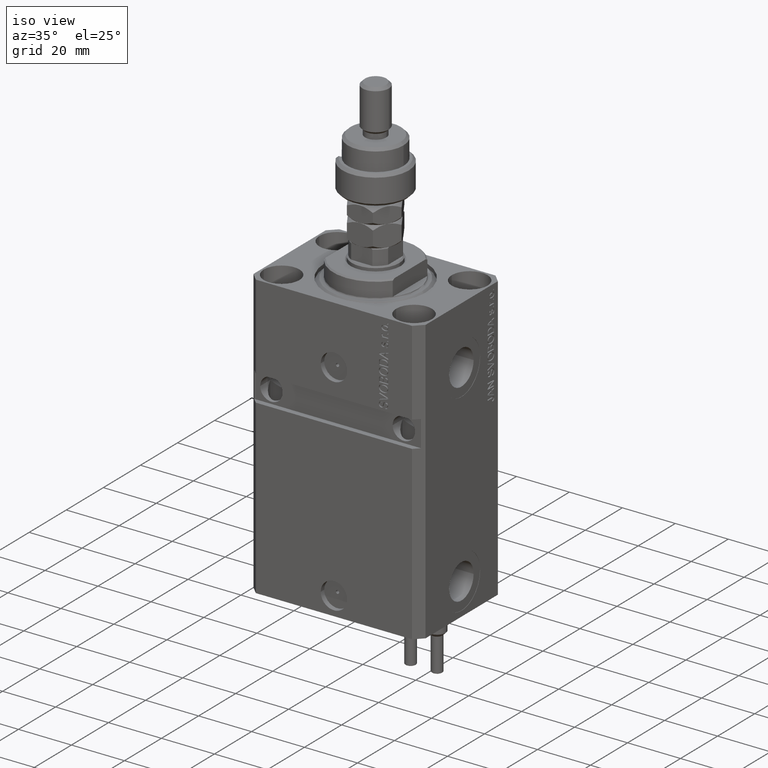
[diagram: clean part render]
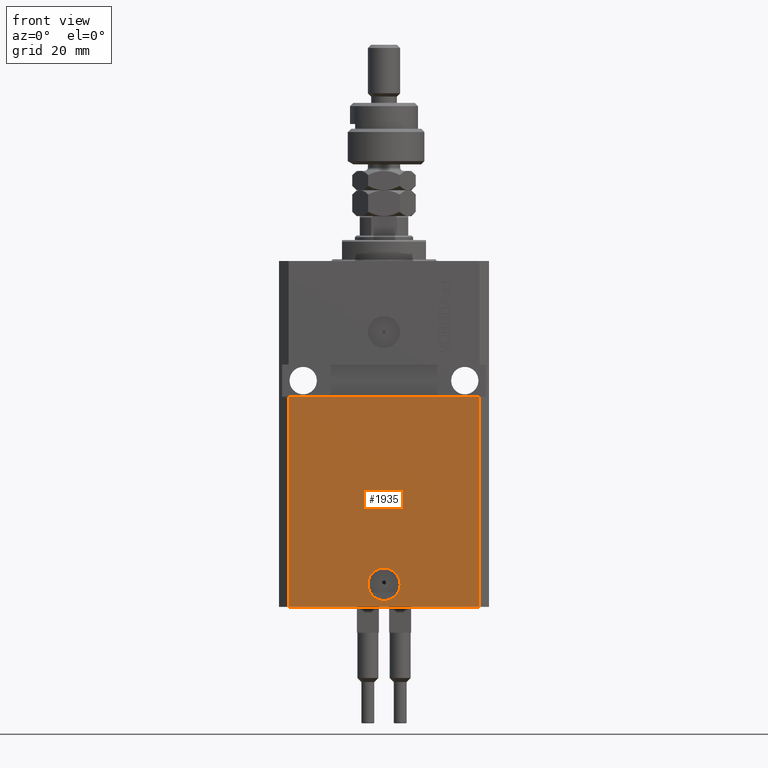
[diagram: tour spotlight — one face highlighted and labeled with its STEP entity id]
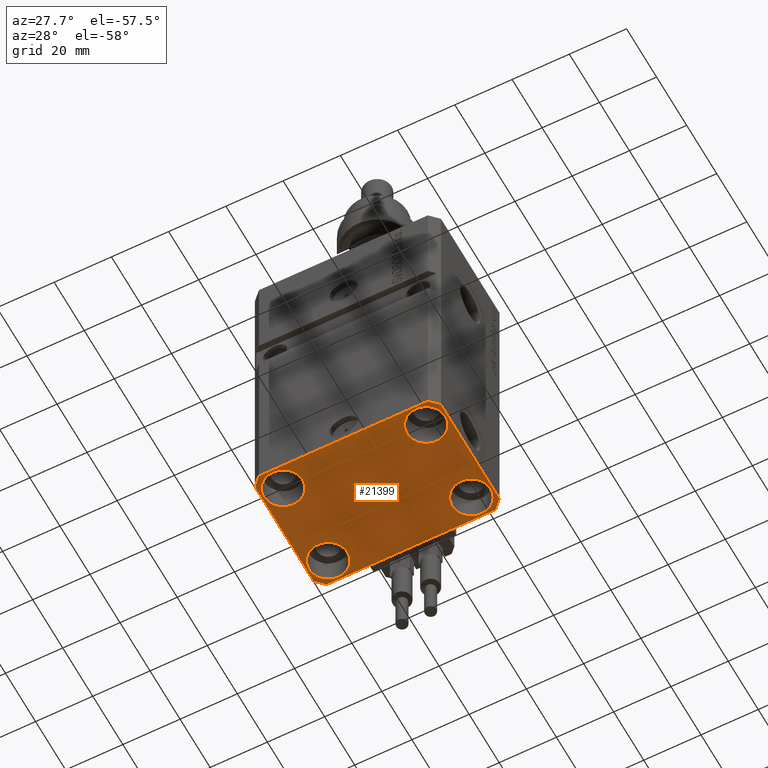
[diagram: tour spotlight — one face highlighted and labeled with its STEP entity id]
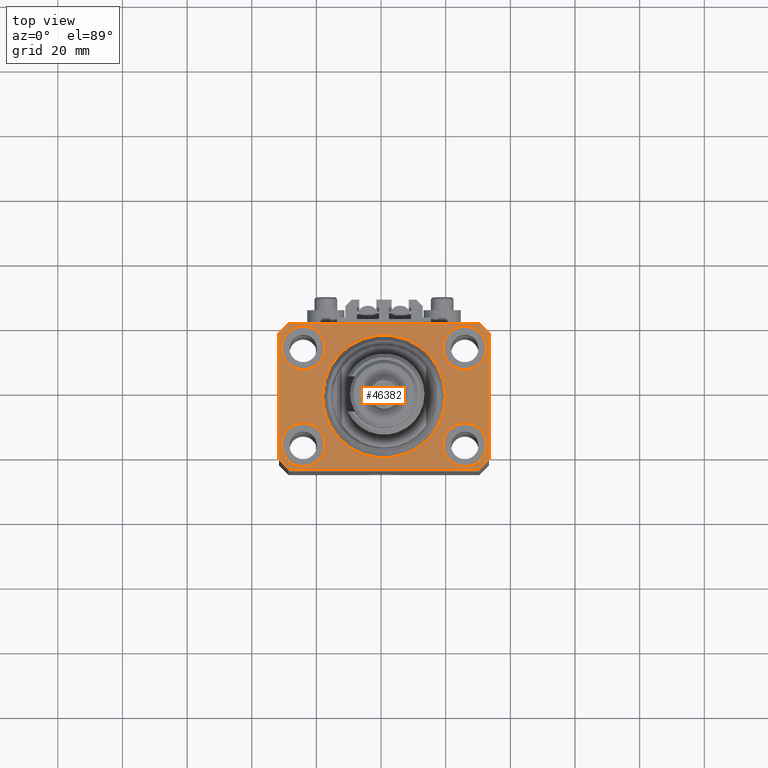
[diagram: tour spotlight — one face highlighted and labeled with its STEP entity id]
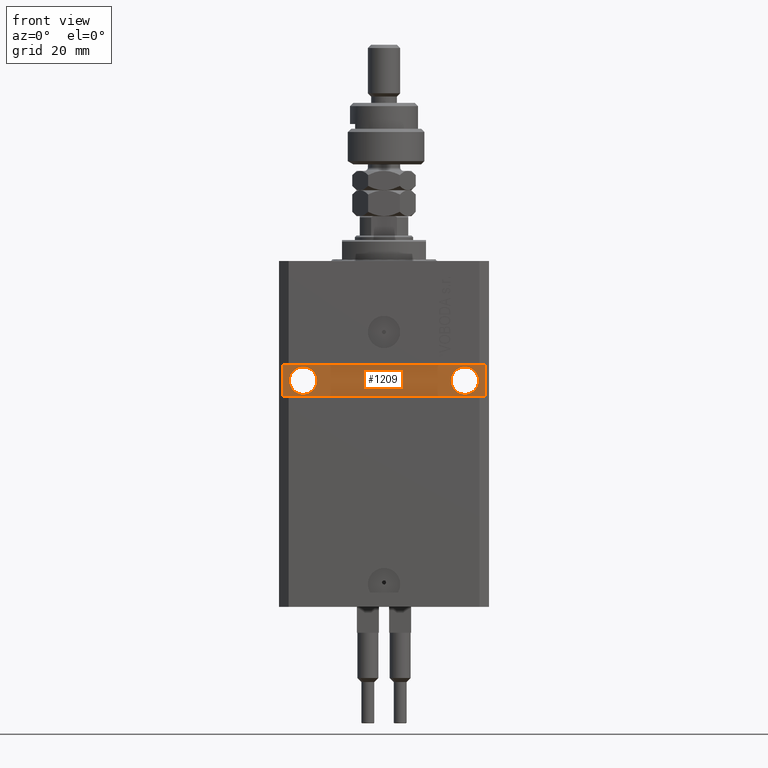
[diagram: tour spotlight — one face highlighted and labeled with its STEP entity id]
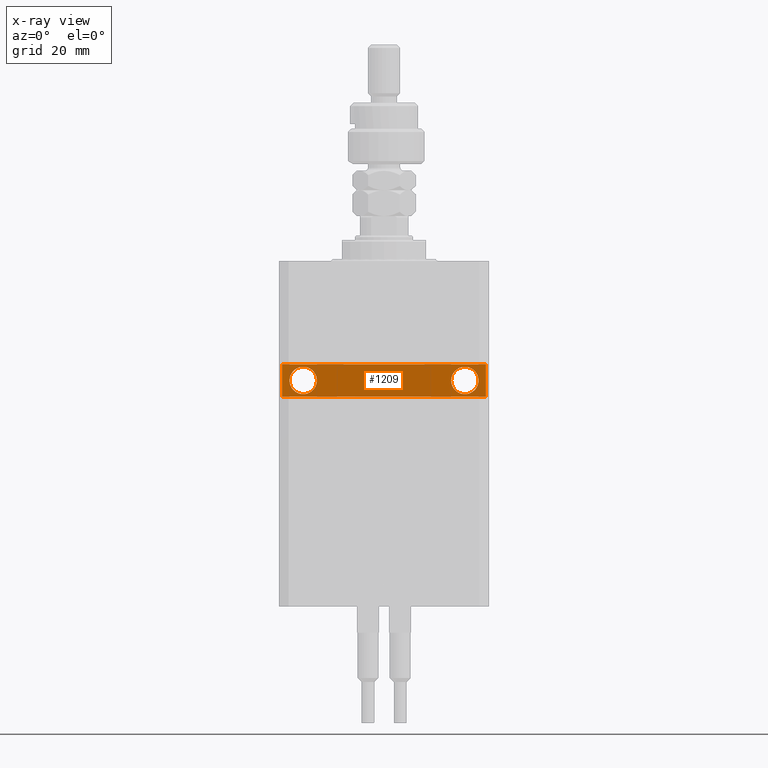
[diagram: x-ray of the same camera — body ghosted, this tour face saturated]
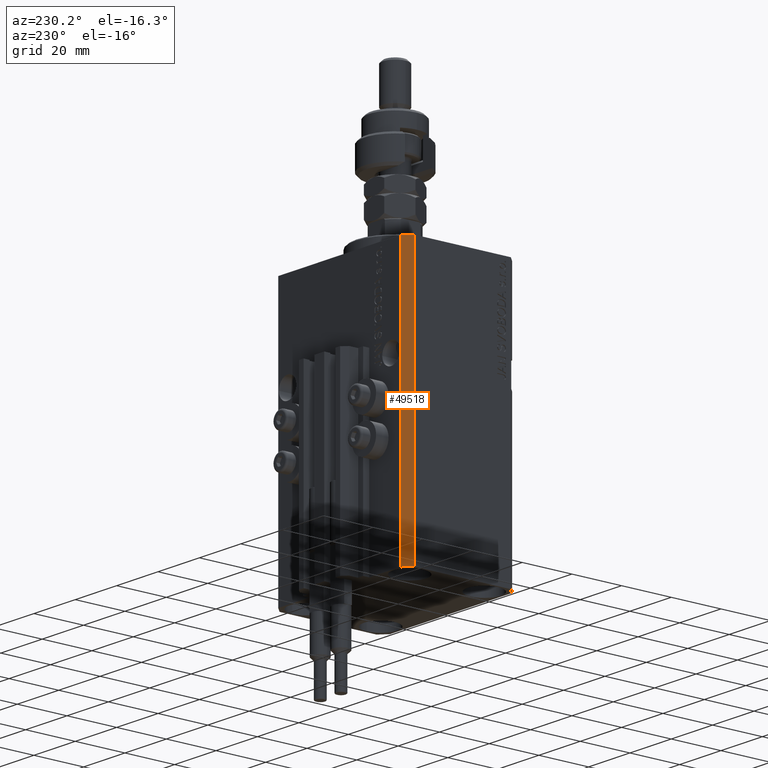
[diagram: tour spotlight — one face highlighted and labeled with its STEP entity id]
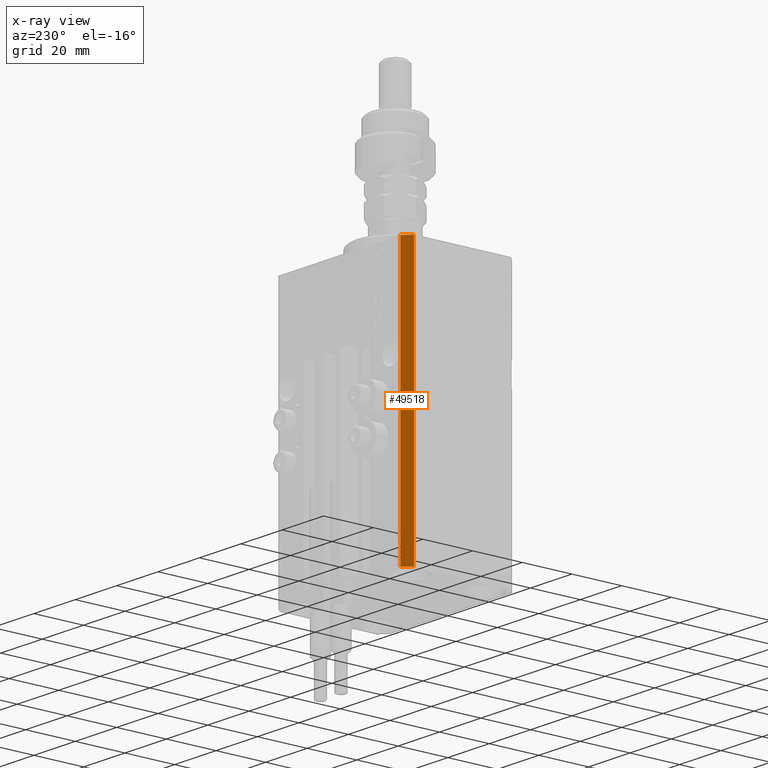
[diagram: x-ray of the same camera — body ghosted, this tour face saturated]
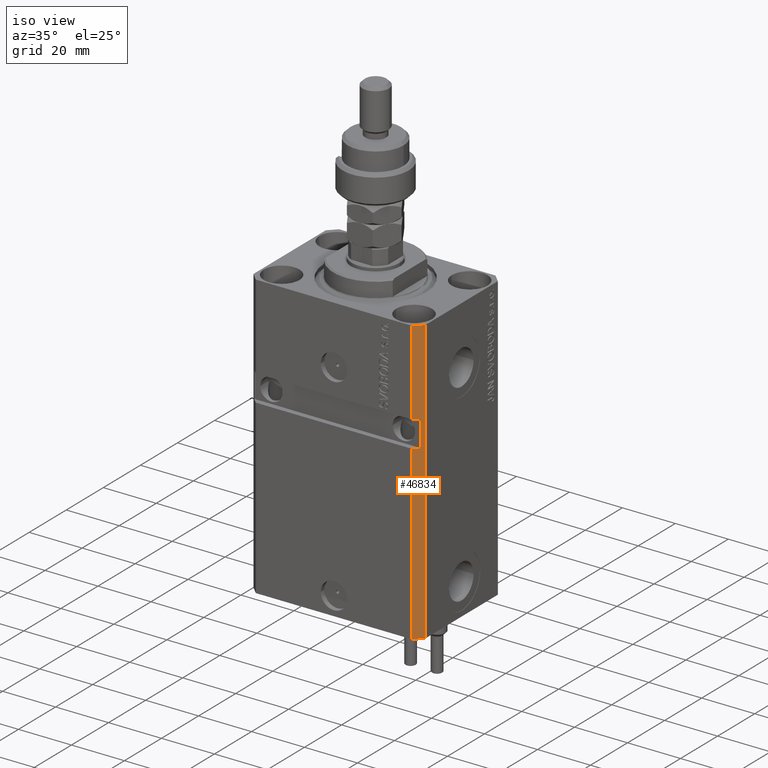
[diagram: tour spotlight — one face highlighted and labeled with its STEP entity id]
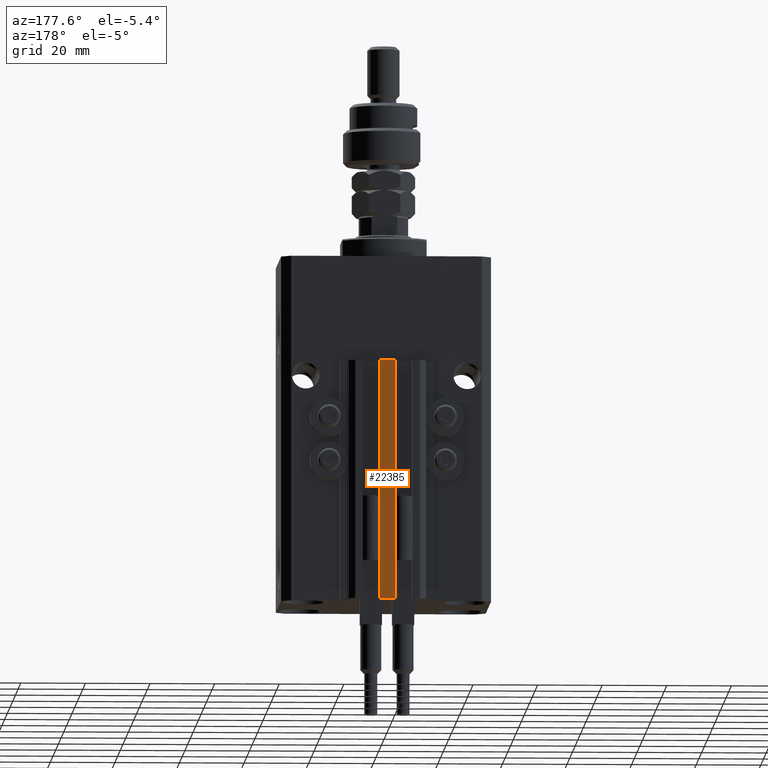
[diagram: tour spotlight — one face highlighted and labeled with its STEP entity id]
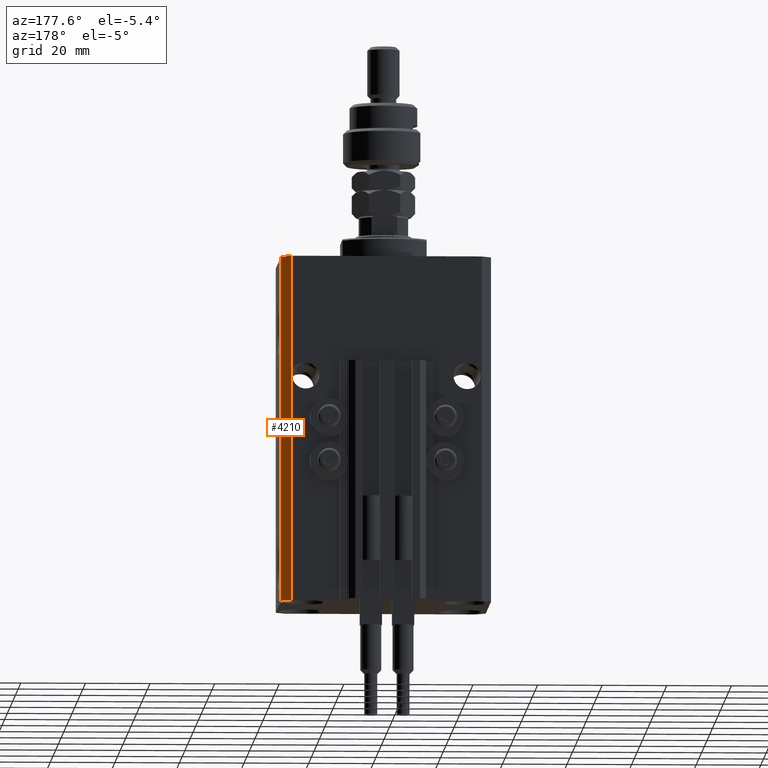
[diagram: tour spotlight — one face highlighted and labeled with its STEP entity id]
A machine part: a face-by-face anatomy tour. The part has 1204 B-rep faces; the first image is the clean iso view, then the 8 largest visible faces are spotlighted one at a time (largest first), each with its STEP entity span.

Face 1 — front view, entity #1935. In plain terms, the highlighted planar face has unit normal (0, -1, 0).
Definition (entity closure, byte-faithful):
#17 = DIRECTION ( 'NONE',  ( 1.176083712526788232E-16, -1.000000000000000000, 0.000000000000000000 ) ) ;
#1563 = CARTESIAN_POINT ( 'NONE',  ( -29.49999999999650413, -22.49999999999949907, -107.0000000000000000 ) ) ;
#1935 = ADVANCED_FACE ( 'NONE', ( #7461, #7707 ), #34460, .T. ) ;
#1986 = VERTEX_POINT ( 'NONE', #15165 ) ;
#2102 = ORIENTED_EDGE ( 'NONE', *, *, #38877, .F. ) ;
#2364 = EDGE_LOOP ( 'NONE', ( #24131, #39999, #27823, #43427 ) ) ;
#2751 = CARTESIAN_POINT ( 'NONE',  ( 29.49999999999650058, -22.49999999999949196, -41.99999999999998579 ) ) ;
#3163 = CARTESIAN_POINT ( 'NONE',  ( 5.000000000000008882, -22.49999999999949551, -99.99999999999998579 ) ) ;
#5594 = EDGE_LOOP ( 'NONE', ( #30396, #2102 ) ) ;
#6116 = LINE ( 'NONE', #38005, #10053 ) ;
#6859 = DIRECTION ( 'NONE',  ( 1.176083712526788232E-16, -1.000000000000000000, 0.000000000000000000 ) ) ;
#6914 = CARTESIAN_POINT ( 'NONE',  ( -5.000000000000003553, -22.49999999999949551, -99.99999999999998579 ) ) ;
#7115 = CARTESIAN_POINT ( 'NONE',  ( -29.49999999999650413, -22.49999999999949907, -107.0000000000000000 ) ) ;
#7461 = FACE_BOUND ( 'NONE', #5594, .T. ) ;
#7707 = FACE_OUTER_BOUND ( 'NONE', #2364, .T. ) ;
#8218 = CARTESIAN_POINT ( 'NONE',  ( -29.49999999999650413, -22.49999999999949907, -107.0000000000000000 ) ) ;
#9860 = DIRECTION ( 'NONE',  ( 1.176083712526788232E-16, -1.000000000000000000, 0.000000000000000000 ) ) ;
#10053 = VECTOR ( 'NONE', #48801, 1000.000000000000000 ) ;
#10473 = CARTESIAN_POINT ( 'NONE',  ( 2.646188353185214061E-15, -22.49999999999949551, -99.99999999999998579 ) ) ;
#11491 = AXIS2_PLACEMENT_3D ( 'NONE', #10473, #6859, #26410 ) ;
#13435 = DIRECTION ( 'NONE',  ( 0.000000000000000000, 0.000000000000000000, 1.000000000000000000 ) ) ;
#15165 = CARTESIAN_POINT ( 'NONE',  ( -29.49999999999650413, -22.49999999999949907, -41.99999999999999289 ) ) ;
#16830 = AXIS2_PLACEMENT_3D ( 'NONE', #37626, #9860, #41988 ) ;
#17251 = DIRECTION ( 'NONE',  ( 0.000000000000000000, 0.000000000000000000, 1.000000000000000000 ) ) ;
#18552 = VERTEX_POINT ( 'NONE', #2751 ) ;
#24131 = ORIENTED_EDGE ( 'NONE', *, *, #34612, .F. ) ;
#26410 = DIRECTION ( 'NONE',  ( 1.000000000000000000, 0.000000000000000000, 0.000000000000000000 ) ) ;
#27823 = ORIENTED_EDGE ( 'NONE', *, *, #31045, .T. ) ;
#29371 = LINE ( 'NONE', #44780, #30466 ) ;
#30161 = AXIS2_PLACEMENT_3D ( 'NONE', #8218, #17, #50379 ) ;
#30396 = ORIENTED_EDGE ( 'NONE', *, *, #49337, .F. ) ;
#30466 = VECTOR ( 'NONE', #13435, 1000.000000000000000 ) ;
#31045 = EDGE_CURVE ( 'NONE', #45052, #38097, #50300, .T. ) ;
#32145 = EDGE_CURVE ( 'NONE', #38097, #18552, #29371, .T. ) ;
#33686 = VECTOR ( 'NONE', #38757, 1000.000000000000000 ) ;
#34460 = PLANE ( 'NONE',  #30161 ) ;
#34612 = EDGE_CURVE ( 'NONE', #1986, #18552, #6116, .T. ) ;
#36790 = LINE ( 'NONE', #1563, #45929 ) ;
#37626 = CARTESIAN_POINT ( 'NONE',  ( 2.646188353185214061E-15, -22.49999999999949551, -99.99999999999998579 ) ) ;
#38005 = CARTESIAN_POINT ( 'NONE',  ( -32.49999999999650413, -22.49999999999949907, -41.99999999999999289 ) ) ;
#38097 = VERTEX_POINT ( 'NONE', #45565 ) ;
#38195 = CIRCLE ( 'NONE', #16830, 5.000000000000006217 ) ;
#38479 = CARTESIAN_POINT ( 'NONE',  ( -29.49999999999650413, -22.49999999999949907, -107.0000000000000000 ) ) ;
#38757 = DIRECTION ( 'NONE',  ( 1.000000000000000000, 1.176083712526788232E-16, 0.000000000000000000 ) ) ;
#38877 = EDGE_CURVE ( 'NONE', #48839, #40709, #38195, .T. ) ;
#39999 = ORIENTED_EDGE ( 'NONE', *, *, #48065, .F. ) ;
#40709 = VERTEX_POINT ( 'NONE', #3163 ) ;
#41988 = DIRECTION ( 'NONE',  ( 1.000000000000000000, 0.000000000000000000, 0.000000000000000000 ) ) ;
#42674 = CIRCLE ( 'NONE', #11491, 5.000000000000006217 ) ;
#43427 = ORIENTED_EDGE ( 'NONE', *, *, #32145, .T. ) ;
#44780 = CARTESIAN_POINT ( 'NONE',  ( 29.49999999999650413, -22.49999999999949196, -107.0000000000000000 ) ) ;
#45052 = VERTEX_POINT ( 'NONE', #38479 ) ;
#45565 = CARTESIAN_POINT ( 'NONE',  ( 29.49999999999650413, -22.49999999999949196, -107.0000000000000000 ) ) ;
#45929 = VECTOR ( 'NONE', #17251, 1000.000000000000000 ) ;
#48065 = EDGE_CURVE ( 'NONE', #45052, #1986, #36790, .T. ) ;
#48801 = DIRECTION ( 'NONE',  ( 1.000000000000000000, 1.067522139062765303E-16, 1.067522139062765303E-16 ) ) ;
#48839 = VERTEX_POINT ( 'NONE', #6914 ) ;
#49337 = EDGE_CURVE ( 'NONE', #40709, #48839, #42674, .T. ) ;
#50300 = LINE ( 'NONE', #7115, #33686 ) ;
#50379 = DIRECTION ( 'NONE',  ( 1.000000000000000000, 1.176083712526788232E-16, 0.000000000000000000 ) ) ;

Face 2 — auxiliary view, entity #21399. In plain terms, the highlighted planar face has unit normal (0, 0, 1).
Definition (entity closure, byte-faithful):
#332 = CARTESIAN_POINT ( 'NONE',  ( -32.49999999999650413, 19.49999999999949907, -107.0000000000000000 ) ) ;
#1313 = DIRECTION ( 'NONE',  ( 1.000000000000000000, 0.000000000000000000, 0.000000000000000000 ) ) ;
#1754 = DIRECTION ( 'NONE',  ( 1.000000000000000000, 0.000000000000000000, 0.000000000000000000 ) ) ;
#2265 = EDGE_CURVE ( 'NONE', #19843, #11121, #11275, .T. ) ;
#2506 = EDGE_LOOP ( 'NONE', ( #41555, #24169 ) ) ;
#2723 = CARTESIAN_POINT ( 'NONE',  ( -31.75000000002253842, 15.00000000000000000, -107.0000000000000000 ) ) ;
#3032 = CIRCLE ( 'NONE', #6336, 6.749999999958452790 ) ;
#3034 = AXIS2_PLACEMENT_3D ( 'NONE', #40520, #19991, #4294 ) ;
#3424 = FACE_BOUND ( 'NONE', #2506, .T. ) ;
#4294 = DIRECTION ( 'NONE',  ( 1.000000000000000000, 0.000000000000000000, 0.000000000000000000 ) ) ;
#4857 = VERTEX_POINT ( 'NONE', #18207 ) ;
#5118 = CARTESIAN_POINT ( 'NONE',  ( 31.74999999997746869, -15.00000000000000000, -107.0000000000000000 ) ) ;
#5129 = EDGE_CURVE ( 'NONE', #11121, #19843, #3032, .T. ) ;
#5417 = EDGE_CURVE ( 'NONE', #43981, #45052, #10630, .T. ) ;
#5996 = LINE ( 'NONE', #33998, #21520 ) ;
#6252 = LINE ( 'NONE', #34261, #28124 ) ;
#6319 = CARTESIAN_POINT ( 'NONE',  ( -29.49999999999650413, 22.49999999999949907, -107.0000000000000000 ) ) ;
#6336 = AXIS2_PLACEMENT_3D ( 'NONE', #15046, #14528, #6820 ) ;
#6775 = FACE_BOUND ( 'NONE', #30519, .T. ) ;
#6820 = DIRECTION ( 'NONE',  ( 1.000000000000000000, 0.000000000000000000, 0.000000000000000000 ) ) ;
#7115 = CARTESIAN_POINT ( 'NONE',  ( -29.49999999999650413, -22.49999999999949907, -107.0000000000000000 ) ) ;
#7116 = VERTEX_POINT ( 'NONE', #5118 ) ;
#7648 = EDGE_LOOP ( 'NONE', ( #12522, #20064, #12612, #45556, #34925, #24132, #23759, #8014 ) ) ;
#7796 = CARTESIAN_POINT ( 'NONE',  ( -25.00000000000000355, -15.00000000000000000, -107.0000000000000000 ) ) ;
#8014 = ORIENTED_EDGE ( 'NONE', *, *, #44076, .F. ) ;
#8015 = LINE ( 'NONE', #20848, #13693 ) ;
#8767 = CARTESIAN_POINT ( 'NONE',  ( -25.00000000000000355, 15.00000000000000000, -107.0000000000000000 ) ) ;
#8890 = VERTEX_POINT ( 'NONE', #26582 ) ;
#9053 = CARTESIAN_POINT ( 'NONE',  ( 32.49999999999702993, 19.49999999999945999, -107.0000000000000000 ) ) ;
#9566 = CIRCLE ( 'NONE', #21960, 6.750000000022533087 ) ;
#9592 = DIRECTION ( 'NONE',  ( -0.000000000000000000, -0.000000000000000000, 1.000000000000000000 ) ) ;
#9719 = CARTESIAN_POINT ( 'NONE',  ( 29.49999999999707967, 22.49999999999951328, -107.0000000000000000 ) ) ;
#10630 = LINE ( 'NONE', #10887, #44894 ) ;
#10754 = CARTESIAN_POINT ( 'NONE',  ( 25.00000000000000355, -15.00000000000000000, -107.0000000000000000 ) ) ;
#10886 = DIRECTION ( 'NONE',  ( 0.000000000000000000, -1.000000000000000000, 0.000000000000000000 ) ) ;
#10887 = CARTESIAN_POINT ( 'NONE',  ( -32.49999999999650413, -19.49999999999949907, -107.0000000000000000 ) ) ;
#11121 = VERTEX_POINT ( 'NONE', #48478 ) ;
#11150 = CARTESIAN_POINT ( 'NONE',  ( 0.000000000000000000, 0.000000000000000000, -107.0000000000000000 ) ) ;
#11275 = CIRCLE ( 'NONE', #3034, 6.749999999958452790 ) ;
#11679 = DIRECTION ( 'NONE',  ( 1.000000000000000000, 0.000000000000000000, 0.000000000000000000 ) ) ;
#11922 = DIRECTION ( 'NONE',  ( -0.000000000000000000, -0.000000000000000000, 1.000000000000000000 ) ) ;
#12347 = CARTESIAN_POINT ( 'NONE',  ( -31.75000000004154899, -15.00000000000000000, -107.0000000000000000 ) ) ;
#12522 = ORIENTED_EDGE ( 'NONE', *, *, #16234, .F. ) ;
#12612 = ORIENTED_EDGE ( 'NONE', *, *, #19578, .F. ) ;
#13693 = VECTOR ( 'NONE', #36529, 1000.000000000000000 ) ;
#13816 = CARTESIAN_POINT ( 'NONE',  ( 32.49999999999651124, -19.49999999999949196, -107.0000000000000000 ) ) ;
#14528 = DIRECTION ( 'NONE',  ( -0.000000000000000000, -0.000000000000000000, 1.000000000000000000 ) ) ;
#14751 = DIRECTION ( 'NONE',  ( 1.000000000000000000, 0.000000000000000000, -0.000000000000000000 ) ) ;
#15046 = CARTESIAN_POINT ( 'NONE',  ( 24.99999999999999645, 15.00000000000000888, -107.0000000000000000 ) ) ;
#15220 = VERTEX_POINT ( 'NONE', #39650 ) ;
#15379 = CARTESIAN_POINT ( 'NONE',  ( -25.00000000000000355, 15.00000000000000000, -107.0000000000000000 ) ) ;
#15641 = DIRECTION ( 'NONE',  ( 1.000000000000000000, 0.000000000000000000, 0.000000000000000000 ) ) ;
#16185 = CARTESIAN_POINT ( 'NONE',  ( 18.25000000004154543, 15.00000000000000888, -107.0000000000000000 ) ) ;
#16234 = EDGE_CURVE ( 'NONE', #38732, #26646, #35102, .T. ) ;
#16253 = DIRECTION ( 'NONE',  ( -0.000000000000000000, -0.000000000000000000, 1.000000000000000000 ) ) ;
#16669 = DIRECTION ( 'NONE',  ( -0.000000000000000000, -0.000000000000000000, 1.000000000000000000 ) ) ;
#17318 = CARTESIAN_POINT ( 'NONE',  ( 25.00000000000000355, -15.00000000000000000, -107.0000000000000000 ) ) ;
#18207 = CARTESIAN_POINT ( 'NONE',  ( 18.25000000002253842, -15.00000000000000000, -107.0000000000000000 ) ) ;
#19578 = EDGE_CURVE ( 'NONE', #29992, #44422, #8015, .T. ) ;
#19643 = EDGE_LOOP ( 'NONE', ( #37612, #40649 ) ) ;
#19787 = VERTEX_POINT ( 'NONE', #12347 ) ;
#19843 = VERTEX_POINT ( 'NONE', #16185 ) ;
#19904 = CIRCLE ( 'NONE', #32230, 6.749999999977465137 ) ;
#19991 = DIRECTION ( 'NONE',  ( -0.000000000000000000, -0.000000000000000000, 1.000000000000000000 ) ) ;
#20064 = ORIENTED_EDGE ( 'NONE', *, *, #47599, .F. ) ;
#20267 = EDGE_CURVE ( 'NONE', #15220, #40057, #9566, .T. ) ;
#20762 = ORIENTED_EDGE ( 'NONE', *, *, #44304, .T. ) ;
#20808 = VERTEX_POINT ( 'NONE', #332 ) ;
#20848 = CARTESIAN_POINT ( 'NONE',  ( 32.49999999999651124, -19.49999999999949196, -107.0000000000000000 ) ) ;
#21399 = ADVANCED_FACE ( 'NONE', ( #42505, #3424, #6775, #41741, #26331 ), #22466, .F. ) ;
#21520 = VECTOR ( 'NONE', #26308, 1000.000000000000000 ) ;
#21960 = AXIS2_PLACEMENT_3D ( 'NONE', #8767, #16253, #1313 ) ;
#22466 = PLANE ( 'NONE',  #47431 ) ;
#23606 = DIRECTION ( 'NONE',  ( -0.000000000000000000, -0.000000000000000000, 1.000000000000000000 ) ) ;
#23759 = ORIENTED_EDGE ( 'NONE', *, *, #34876, .F. ) ;
#24132 = ORIENTED_EDGE ( 'NONE', *, *, #5417, .F. ) ;
#24169 = ORIENTED_EDGE ( 'NONE', *, *, #34639, .T. ) ;
#25549 = ORIENTED_EDGE ( 'NONE', *, *, #25665, .T. ) ;
#25665 = EDGE_CURVE ( 'NONE', #19787, #8890, #27797, .T. ) ;
#25903 = ORIENTED_EDGE ( 'NONE', *, *, #2265, .T. ) ;
#26308 = DIRECTION ( 'NONE',  ( 0.7071067811865483499, 0.7071067811865466846, 0.000000000000000000 ) ) ;
#26316 = DIRECTION ( 'NONE',  ( 0.7071067811865474617, -0.7071067811865474617, 0.000000000000000000 ) ) ;
#26331 = FACE_OUTER_BOUND ( 'NONE', #7648, .T. ) ;
#26582 = CARTESIAN_POINT ( 'NONE',  ( -18.24999999995845812, -15.00000000000000000, -107.0000000000000000 ) ) ;
#26646 = VERTEX_POINT ( 'NONE', #6319 ) ;
#27797 = CIRCLE ( 'NONE', #41834, 6.750000000041541881 ) ;
#27901 = CARTESIAN_POINT ( 'NONE',  ( 32.49999999999702993, 19.49999999999945999, -107.0000000000000000 ) ) ;
#28124 = VECTOR ( 'NONE', #10886, 1000.000000000000000 ) ;
#29992 = VERTEX_POINT ( 'NONE', #13816 ) ;
#30519 = EDGE_LOOP ( 'NONE', ( #25903, #38117 ) ) ;
#30993 = LINE ( 'NONE', #27901, #36829 ) ;
#31045 = EDGE_CURVE ( 'NONE', #45052, #38097, #50300, .T. ) ;
#31375 = CARTESIAN_POINT ( 'NONE',  ( -25.00000000000000355, -15.00000000000000000, -107.0000000000000000 ) ) ;
#32230 = AXIS2_PLACEMENT_3D ( 'NONE', #17318, #9592, #40220 ) ;
#32598 = AXIS2_PLACEMENT_3D ( 'NONE', #7796, #11922, #11679 ) ;
#32600 = EDGE_LOOP ( 'NONE', ( #25549, #20762 ) ) ;
#32637 = VECTOR ( 'NONE', #34924, 1000.000000000000114 ) ;
#33686 = VECTOR ( 'NONE', #38757, 1000.000000000000000 ) ;
#33760 = EDGE_CURVE ( 'NONE', #38097, #29992, #5996, .T. ) ;
#33998 = CARTESIAN_POINT ( 'NONE',  ( 29.49999999999650413, -22.49999999999949196, -107.0000000000000000 ) ) ;
#34261 = CARTESIAN_POINT ( 'NONE',  ( -32.49999999999650413, 19.49999999999949907, -107.0000000000000000 ) ) ;
#34420 = CARTESIAN_POINT ( 'NONE',  ( -29.49999999999650413, 22.49999999999949907, -107.0000000000000000 ) ) ;
#34639 = EDGE_CURVE ( 'NONE', #7116, #4857, #40408, .T. ) ;
#34798 = EDGE_CURVE ( 'NONE', #4857, #7116, #19904, .T. ) ;
#34876 = EDGE_CURVE ( 'NONE', #20808, #43981, #6252, .T. ) ;
#34924 = DIRECTION ( 'NONE',  ( -0.7071067811865474617, -0.7071067811865474617, 0.000000000000000000 ) ) ;
#34925 = ORIENTED_EDGE ( 'NONE', *, *, #31045, .F. ) ;
#35102 = LINE ( 'NONE', #39722, #48037 ) ;
#36317 = EDGE_CURVE ( 'NONE', #40057, #15220, #49461, .T. ) ;
#36354 = DIRECTION ( 'NONE',  ( -0.7071067811865352493, 0.7071067811865597852, 0.000000000000000000 ) ) ;
#36529 = DIRECTION ( 'NONE',  ( 1.334402673828349134E-14, 1.000000000000000000, 0.000000000000000000 ) ) ;
#36829 = VECTOR ( 'NONE', #36354, 1000.000000000000000 ) ;
#37612 = ORIENTED_EDGE ( 'NONE', *, *, #36317, .T. ) ;
#37639 = DIRECTION ( 'NONE',  ( 0.000000000000000000, 0.000000000000000000, 1.000000000000000000 ) ) ;
#38097 = VERTEX_POINT ( 'NONE', #45565 ) ;
#38117 = ORIENTED_EDGE ( 'NONE', *, *, #5129, .T. ) ;
#38479 = CARTESIAN_POINT ( 'NONE',  ( -29.49999999999650413, -22.49999999999949907, -107.0000000000000000 ) ) ;
#38732 = VERTEX_POINT ( 'NONE', #9719 ) ;
#38757 = DIRECTION ( 'NONE',  ( 1.000000000000000000, 1.176083712526788232E-16, 0.000000000000000000 ) ) ;
#39650 = CARTESIAN_POINT ( 'NONE',  ( -18.24999999997747224, 15.00000000000000000, -107.0000000000000000 ) ) ;
#39722 = CARTESIAN_POINT ( 'NONE',  ( 29.49999999999707967, 22.49999999999951328, -107.0000000000000000 ) ) ;
#40057 = VERTEX_POINT ( 'NONE', #2723 ) ;
#40075 = DIRECTION ( 'NONE',  ( 1.000000000000000000, 0.000000000000000000, 0.000000000000000000 ) ) ;
#40220 = DIRECTION ( 'NONE',  ( 1.000000000000000000, 0.000000000000000000, 0.000000000000000000 ) ) ;
#40408 = CIRCLE ( 'NONE', #48626, 6.749999999977465137 ) ;
#40520 = CARTESIAN_POINT ( 'NONE',  ( 24.99999999999999645, 15.00000000000000888, -107.0000000000000000 ) ) ;
#40649 = ORIENTED_EDGE ( 'NONE', *, *, #20267, .T. ) ;
#41555 = ORIENTED_EDGE ( 'NONE', *, *, #34798, .T. ) ;
#41613 = CARTESIAN_POINT ( 'NONE',  ( -32.49999999999650413, -19.49999999999949907, -107.0000000000000000 ) ) ;
#41741 = FACE_BOUND ( 'NONE', #19643, .T. ) ;
#41834 = AXIS2_PLACEMENT_3D ( 'NONE', #31375, #16669, #40075 ) ;
#42505 = FACE_BOUND ( 'NONE', #32600, .T. ) ;
#43981 = VERTEX_POINT ( 'NONE', #41613 ) ;
#44076 = EDGE_CURVE ( 'NONE', #26646, #20808, #45994, .T. ) ;
#44304 = EDGE_CURVE ( 'NONE', #8890, #19787, #44920, .T. ) ;
#44422 = VERTEX_POINT ( 'NONE', #9053 ) ;
#44535 = AXIS2_PLACEMENT_3D ( 'NONE', #15379, #23606, #15641 ) ;
#44894 = VECTOR ( 'NONE', #26316, 1000.000000000000114 ) ;
#44920 = CIRCLE ( 'NONE', #32598, 6.750000000041541881 ) ;
#44932 = DIRECTION ( 'NONE',  ( -0.000000000000000000, -0.000000000000000000, 1.000000000000000000 ) ) ;
#45052 = VERTEX_POINT ( 'NONE', #38479 ) ;
#45556 = ORIENTED_EDGE ( 'NONE', *, *, #33760, .F. ) ;
#45565 = CARTESIAN_POINT ( 'NONE',  ( 29.49999999999650413, -22.49999999999949196, -107.0000000000000000 ) ) ;
#45994 = LINE ( 'NONE', #34420, #32637 ) ;
#47431 = AXIS2_PLACEMENT_3D ( 'NONE', #11150, #37639, #14751 ) ;
#47599 = EDGE_CURVE ( 'NONE', #44422, #38732, #30993, .T. ) ;
#48037 = VECTOR ( 'NONE', #50510, 1000.000000000000000 ) ;
#48478 = CARTESIAN_POINT ( 'NONE',  ( 31.74999999995845101, 15.00000000000000888, -107.0000000000000000 ) ) ;
#48626 = AXIS2_PLACEMENT_3D ( 'NONE', #10754, #44932, #1754 ) ;
#49461 = CIRCLE ( 'NONE', #44535, 6.750000000022533087 ) ;
#50300 = LINE ( 'NONE', #7115, #33686 ) ;
#50510 = DIRECTION ( 'NONE',  ( -1.000000000000000000, -2.352167425053553784E-16, 0.000000000000000000 ) ) ;

Face 3 — top view, entity #46382. In plain terms, the highlighted planar face has unit normal (0, 0, 1).
Definition (entity closure, byte-faithful):
#649 = CARTESIAN_POINT ( 'NONE',  ( -18.24999999997747224, 15.00000000000000000, 0.000000000000000000 ) ) ;
#874 = CARTESIAN_POINT ( 'NONE',  ( -25.00000000000000355, 15.00000000000000000, 0.000000000000000000 ) ) ;
#1720 = VERTEX_POINT ( 'NONE', #10946 ) ;
#1784 = EDGE_CURVE ( 'NONE', #20082, #29047, #4682, .T. ) ;
#2413 = LINE ( 'NONE', #18356, #19409 ) ;
#2487 = VERTEX_POINT ( 'NONE', #37691 ) ;
#2539 = ORIENTED_EDGE ( 'NONE', *, *, #10441, .F. ) ;
#2799 = VERTEX_POINT ( 'NONE', #29905 ) ;
#2905 = DIRECTION ( 'NONE',  ( 0.000000000000000000, 0.000000000000000000, 1.000000000000000000 ) ) ;
#3045 = DIRECTION ( 'NONE',  ( 0.000000000000000000, 0.000000000000000000, 1.000000000000000000 ) ) ;
#3425 = DIRECTION ( 'NONE',  ( 1.000000000000000000, 0.000000000000000000, 0.000000000000000000 ) ) ;
#3795 = VERTEX_POINT ( 'NONE', #24944 ) ;
#3857 = DIRECTION ( 'NONE',  ( 1.000000000000000000, 0.000000000000000000, 0.000000000000000000 ) ) ;
#4037 = VERTEX_POINT ( 'NONE', #34941 ) ;
#4270 = DIRECTION ( 'NONE',  ( 1.000000000000000000, 0.000000000000000000, -0.000000000000000000 ) ) ;
#4496 = LINE ( 'NONE', #31775, #42123 ) ;
#4605 = AXIS2_PLACEMENT_3D ( 'NONE', #25624, #13797, #5834 ) ;
#4682 = CIRCLE ( 'NONE', #29312, 6.750000000041541881 ) ;
#5028 = VERTEX_POINT ( 'NONE', #28707 ) ;
#5256 = DIRECTION ( 'NONE',  ( -0.7071067811865474617, -0.7071067811865474617, 0.000000000000000000 ) ) ;
#5688 = CARTESIAN_POINT ( 'NONE',  ( -25.00000000000000355, -15.00000000000000000, 0.000000000000000000 ) ) ;
#5834 = DIRECTION ( 'NONE',  ( 1.000000000000000000, 0.000000000000000000, 0.000000000000000000 ) ) ;
#6136 = VECTOR ( 'NONE', #40974, 1000.000000000000000 ) ;
#6155 = CARTESIAN_POINT ( 'NONE',  ( 29.49999999999650413, -22.49999999999949196, 0.000000000000000000 ) ) ;
#6898 = CIRCLE ( 'NONE', #50418, 6.749999999958452790 ) ;
#7014 = DIRECTION ( 'NONE',  ( 1.000000000000000000, 1.176083712526788232E-16, 0.000000000000000000 ) ) ;
#7123 = DIRECTION ( 'NONE',  ( 0.7071067811865474617, -0.7071067811865474617, 0.000000000000000000 ) ) ;
#7617 = CARTESIAN_POINT ( 'NONE',  ( -19.00000000000000000, 2.326828918379970970E-15, 0.000000000000000000 ) ) ;
#7637 = ORIENTED_EDGE ( 'NONE', *, *, #36740, .T. ) ;
#7656 = EDGE_CURVE ( 'NONE', #46207, #29373, #40059, .T. ) ;
#8061 = EDGE_LOOP ( 'NONE', ( #46291, #30402 ) ) ;
#8204 = ORIENTED_EDGE ( 'NONE', *, *, #25915, .T. ) ;
#8616 = FACE_BOUND ( 'NONE', #8061, .T. ) ;
#8878 = AXIS2_PLACEMENT_3D ( 'NONE', #13007, #9376, #4270 ) ;
#8903 = AXIS2_PLACEMENT_3D ( 'NONE', #874, #47666, #12942 ) ;
#8965 = AXIS2_PLACEMENT_3D ( 'NONE', #13761, #45120, #17871 ) ;
#8978 = CARTESIAN_POINT ( 'NONE',  ( 0.000000000000000000, 0.000000000000000000, 0.000000000000000000 ) ) ;
#9106 = CARTESIAN_POINT ( 'NONE',  ( 29.49999999999707967, 22.49999999999951328, 0.000000000000000000 ) ) ;
#9336 = ORIENTED_EDGE ( 'NONE', *, *, #13860, .F. ) ;
#9376 = DIRECTION ( 'NONE',  ( 0.000000000000000000, 0.000000000000000000, 1.000000000000000000 ) ) ;
#9550 = EDGE_CURVE ( 'NONE', #43739, #5028, #29811, .T. ) ;
#9717 = VECTOR ( 'NONE', #14240, 1000.000000000000000 ) ;
#9885 = CARTESIAN_POINT ( 'NONE',  ( 32.49999999999702993, 19.49999999999945999, 0.000000000000000000 ) ) ;
#9933 = CARTESIAN_POINT ( 'NONE',  ( 31.74999999997746869, -15.00000000000000000, 0.000000000000000000 ) ) ;
#10005 = CARTESIAN_POINT ( 'NONE',  ( -29.49999999999650413, 22.49999999999949907, 0.000000000000000000 ) ) ;
#10057 = VERTEX_POINT ( 'NONE', #7617 ) ;
#10441 = EDGE_CURVE ( 'NONE', #35857, #17985, #34412, .T. ) ;
#10490 = LINE ( 'NONE', #49552, #22030 ) ;
#10518 = DIRECTION ( 'NONE',  ( 1.000000000000000000, 0.000000000000000000, 0.000000000000000000 ) ) ;
#10946 = CARTESIAN_POINT ( 'NONE',  ( 32.49999999999702993, 19.49999999999945999, 0.000000000000000000 ) ) ;
#11737 = DIRECTION ( 'NONE',  ( 1.000000000000000000, 0.000000000000000000, 0.000000000000000000 ) ) ;
#11762 = ORIENTED_EDGE ( 'NONE', *, *, #24019, .F. ) ;
#12482 = EDGE_CURVE ( 'NONE', #4037, #3795, #21949, .T. ) ;
#12653 = DIRECTION ( 'NONE',  ( 0.000000000000000000, 0.000000000000000000, 1.000000000000000000 ) ) ;
#12942 = DIRECTION ( 'NONE',  ( 1.000000000000000000, 0.000000000000000000, 0.000000000000000000 ) ) ;
#13007 = CARTESIAN_POINT ( 'NONE',  ( 0.000000000000000000, 0.000000000000000000, 0.000000000000000000 ) ) ;
#13371 = DIRECTION ( 'NONE',  ( 0.7071067811865483499, 0.7071067811865466846, 0.000000000000000000 ) ) ;
#13441 = EDGE_CURVE ( 'NONE', #24061, #22035, #44074, .T. ) ;
#13761 = CARTESIAN_POINT ( 'NONE',  ( 25.00000000000000355, -15.00000000000000000, 0.000000000000000000 ) ) ;
#13797 = DIRECTION ( 'NONE',  ( 0.000000000000000000, 0.000000000000000000, 1.000000000000000000 ) ) ;
#13860 = EDGE_CURVE ( 'NONE', #29373, #46207, #6898, .T. ) ;
#14240 = DIRECTION ( 'NONE',  ( -0.7071067811865352493, 0.7071067811865597852, 0.000000000000000000 ) ) ;
#14820 = CARTESIAN_POINT ( 'NONE',  ( 19.00000000000000000, 0.000000000000000000, 0.000000000000000000 ) ) ;
#15647 = EDGE_LOOP ( 'NONE', ( #9336, #23246 ) ) ;
#16207 = DIRECTION ( 'NONE',  ( 0.000000000000000000, 0.000000000000000000, 1.000000000000000000 ) ) ;
#16781 = CARTESIAN_POINT ( 'NONE',  ( 29.49999999999707967, 22.49999999999951328, 0.000000000000000000 ) ) ;
#17040 = ORIENTED_EDGE ( 'NONE', *, *, #1784, .F. ) ;
#17407 = EDGE_LOOP ( 'NONE', ( #31598, #17040 ) ) ;
#17871 = DIRECTION ( 'NONE',  ( 1.000000000000000000, 0.000000000000000000, 0.000000000000000000 ) ) ;
#17902 = AXIS2_PLACEMENT_3D ( 'NONE', #38143, #2905, #3425 ) ;
#17985 = VERTEX_POINT ( 'NONE', #43038 ) ;
#18356 = CARTESIAN_POINT ( 'NONE',  ( -29.49999999999650413, -22.49999999999949907, 0.000000000000000000 ) ) ;
#18739 = ORIENTED_EDGE ( 'NONE', *, *, #41129, .F. ) ;
#18935 = DIRECTION ( 'NONE',  ( 0.000000000000000000, 0.000000000000000000, 1.000000000000000000 ) ) ;
#19409 = VECTOR ( 'NONE', #7014, 1000.000000000000000 ) ;
#20082 = VERTEX_POINT ( 'NONE', #33251 ) ;
#20343 = AXIS2_PLACEMENT_3D ( 'NONE', #26635, #18935, #11737 ) ;
#21189 = CIRCLE ( 'NONE', #40877, 6.750000000022533087 ) ;
#21824 = EDGE_CURVE ( 'NONE', #29047, #20082, #50720, .T. ) ;
#21949 = LINE ( 'NONE', #25796, #6136 ) ;
#22030 = VECTOR ( 'NONE', #7123, 1000.000000000000114 ) ;
#22035 = VERTEX_POINT ( 'NONE', #10005 ) ;
#22089 = VECTOR ( 'NONE', #13371, 1000.000000000000000 ) ;
#22260 = EDGE_CURVE ( 'NONE', #2487, #41318, #21189, .T. ) ;
#22444 = EDGE_CURVE ( 'NONE', #43098, #10057, #29365, .T. ) ;
#22719 = EDGE_CURVE ( 'NONE', #1720, #24061, #37910, .T. ) ;
#23170 = CARTESIAN_POINT ( 'NONE',  ( -25.00000000000000355, -15.00000000000000000, 0.000000000000000000 ) ) ;
#23246 = ORIENTED_EDGE ( 'NONE', *, *, #7656, .F. ) ;
#24019 = EDGE_CURVE ( 'NONE', #41318, #2487, #50793, .T. ) ;
#24061 = VERTEX_POINT ( 'NONE', #16781 ) ;
#24481 = DIRECTION ( 'NONE',  ( 1.000000000000000000, 0.000000000000000000, 0.000000000000000000 ) ) ;
#24823 = FACE_BOUND ( 'NONE', #17407, .T. ) ;
#24924 = LINE ( 'NONE', #43711, #49045 ) ;
#24944 = CARTESIAN_POINT ( 'NONE',  ( -32.49999999999650413, -19.49999999999949907, 0.000000000000000000 ) ) ;
#25379 = CARTESIAN_POINT ( 'NONE',  ( -25.00000000000000355, 15.00000000000000000, 0.000000000000000000 ) ) ;
#25624 = CARTESIAN_POINT ( 'NONE',  ( 25.00000000000000355, -15.00000000000000000, 0.000000000000000000 ) ) ;
#25796 = CARTESIAN_POINT ( 'NONE',  ( -32.49999999999650413, 19.49999999999949907, 0.000000000000000000 ) ) ;
#25915 = EDGE_CURVE ( 'NONE', #3795, #2799, #10490, .T. ) ;
#25963 = CIRCLE ( 'NONE', #42398, 19.00000000000000000 ) ;
#26345 = CARTESIAN_POINT ( 'NONE',  ( -18.24999999995846167, -15.00000000000000000, 0.000000000000000000 ) ) ;
#26635 = CARTESIAN_POINT ( 'NONE',  ( 0.000000000000000000, 0.000000000000000000, 0.000000000000000000 ) ) ;
#28048 = EDGE_LOOP ( 'NONE', ( #11762, #38427 ) ) ;
#28427 = FACE_BOUND ( 'NONE', #15647, .T. ) ;
#28707 = CARTESIAN_POINT ( 'NONE',  ( 32.49999999999651124, -19.49999999999949196, 0.000000000000000000 ) ) ;
#29047 = VERTEX_POINT ( 'NONE', #26345 ) ;
#29312 = AXIS2_PLACEMENT_3D ( 'NONE', #5688, #12653, #36792 ) ;
#29365 = CIRCLE ( 'NONE', #20343, 19.00000000000000000 ) ;
#29373 = VERTEX_POINT ( 'NONE', #45539 ) ;
#29569 = ORIENTED_EDGE ( 'NONE', *, *, #41488, .T. ) ;
#29811 = LINE ( 'NONE', #6155, #22089 ) ;
#29905 = CARTESIAN_POINT ( 'NONE',  ( -29.49999999999650413, -22.49999999999949907, 0.000000000000000000 ) ) ;
#30402 = ORIENTED_EDGE ( 'NONE', *, *, #42002, .F. ) ;
#30736 = ORIENTED_EDGE ( 'NONE', *, *, #12482, .T. ) ;
#31598 = ORIENTED_EDGE ( 'NONE', *, *, #21824, .F. ) ;
#31775 = CARTESIAN_POINT ( 'NONE',  ( -29.49999999999650413, 22.49999999999949907, 0.000000000000000000 ) ) ;
#32212 = CARTESIAN_POINT ( 'NONE',  ( 24.99999999999999645, 15.00000000000000888, 0.000000000000000000 ) ) ;
#32294 = FACE_OUTER_BOUND ( 'NONE', #37330, .T. ) ;
#33251 = CARTESIAN_POINT ( 'NONE',  ( -31.75000000004154899, -15.00000000000000000, 0.000000000000000000 ) ) ;
#34147 = CIRCLE ( 'NONE', #4605, 6.749999999977465137 ) ;
#34412 = CIRCLE ( 'NONE', #8965, 6.749999999977465137 ) ;
#34941 = CARTESIAN_POINT ( 'NONE',  ( -32.49999999999650413, 19.49999999999949907, 0.000000000000000000 ) ) ;
#35857 = VERTEX_POINT ( 'NONE', #9933 ) ;
#36149 = FACE_BOUND ( 'NONE', #28048, .T. ) ;
#36396 = PLANE ( 'NONE',  #8878 ) ;
#36740 = EDGE_CURVE ( 'NONE', #22035, #4037, #4496, .T. ) ;
#36792 = DIRECTION ( 'NONE',  ( 1.000000000000000000, 0.000000000000000000, 0.000000000000000000 ) ) ;
#37330 = EDGE_LOOP ( 'NONE', ( #46219, #7637, #30736, #8204, #29569, #39966, #49471, #45320 ) ) ;
#37582 = AXIS2_PLACEMENT_3D ( 'NONE', #23170, #16207, #3857 ) ;
#37691 = CARTESIAN_POINT ( 'NONE',  ( -31.75000000002253842, 15.00000000000000000, 0.000000000000000000 ) ) ;
#37910 = LINE ( 'NONE', #9885, #9717 ) ;
#38143 = CARTESIAN_POINT ( 'NONE',  ( 24.99999999999999645, 15.00000000000000888, 0.000000000000000000 ) ) ;
#38427 = ORIENTED_EDGE ( 'NONE', *, *, #22260, .F. ) ;
#39966 = ORIENTED_EDGE ( 'NONE', *, *, #9550, .T. ) ;
#40048 = EDGE_LOOP ( 'NONE', ( #2539, #18739 ) ) ;
#40059 = CIRCLE ( 'NONE', #17902, 6.749999999958452790 ) ;
#40358 = DIRECTION ( 'NONE',  ( 1.334402673828349134E-14, 1.000000000000000000, 0.000000000000000000 ) ) ;
#40877 = AXIS2_PLACEMENT_3D ( 'NONE', #25379, #41061, #41815 ) ;
#40974 = DIRECTION ( 'NONE',  ( 0.000000000000000000, -1.000000000000000000, 0.000000000000000000 ) ) ;
#41061 = DIRECTION ( 'NONE',  ( 0.000000000000000000, 0.000000000000000000, 1.000000000000000000 ) ) ;
#41129 = EDGE_CURVE ( 'NONE', #17985, #35857, #34147, .T. ) ;
#41318 = VERTEX_POINT ( 'NONE', #649 ) ;
#41488 = EDGE_CURVE ( 'NONE', #2799, #43739, #2413, .T. ) ;
#41815 = DIRECTION ( 'NONE',  ( 1.000000000000000000, 0.000000000000000000, 0.000000000000000000 ) ) ;
#42002 = EDGE_CURVE ( 'NONE', #10057, #43098, #25963, .T. ) ;
#42123 = VECTOR ( 'NONE', #5256, 1000.000000000000114 ) ;
#42198 = CARTESIAN_POINT ( 'NONE',  ( 18.25000000004154543, 15.00000000000000888, 0.000000000000000000 ) ) ;
#42280 = VECTOR ( 'NONE', #44329, 1000.000000000000000 ) ;
#42398 = AXIS2_PLACEMENT_3D ( 'NONE', #8978, #3045, #10518 ) ;
#42961 = CARTESIAN_POINT ( 'NONE',  ( 29.49999999999650413, -22.49999999999949196, 0.000000000000000000 ) ) ;
#43038 = CARTESIAN_POINT ( 'NONE',  ( 18.25000000002253842, -15.00000000000000000, 0.000000000000000000 ) ) ;
#43098 = VERTEX_POINT ( 'NONE', #14820 ) ;
#43711 = CARTESIAN_POINT ( 'NONE',  ( 32.49999999999651124, -19.49999999999949196, 0.000000000000000000 ) ) ;
#43739 = VERTEX_POINT ( 'NONE', #42961 ) ;
#43896 = EDGE_CURVE ( 'NONE', #5028, #1720, #24924, .T. ) ;
#44074 = LINE ( 'NONE', #9106, #42280 ) ;
#44103 = FACE_BOUND ( 'NONE', #40048, .T. ) ;
#44329 = DIRECTION ( 'NONE',  ( -1.000000000000000000, -2.352167425053553784E-16, 0.000000000000000000 ) ) ;
#45120 = DIRECTION ( 'NONE',  ( 0.000000000000000000, 0.000000000000000000, 1.000000000000000000 ) ) ;
#45320 = ORIENTED_EDGE ( 'NONE', *, *, #22719, .T. ) ;
#45539 = CARTESIAN_POINT ( 'NONE',  ( 31.74999999995845101, 15.00000000000000888, 0.000000000000000000 ) ) ;
#46207 = VERTEX_POINT ( 'NONE', #42198 ) ;
#46219 = ORIENTED_EDGE ( 'NONE', *, *, #13441, .T. ) ;
#46291 = ORIENTED_EDGE ( 'NONE', *, *, #22444, .F. ) ;
#46382 = ADVANCED_FACE ( 'NONE', ( #24823, #44103, #28427, #36149, #8616, #32294 ), #36396, .T. ) ;
#47122 = DIRECTION ( 'NONE',  ( 0.000000000000000000, 0.000000000000000000, 1.000000000000000000 ) ) ;
#47666 = DIRECTION ( 'NONE',  ( 0.000000000000000000, 0.000000000000000000, 1.000000000000000000 ) ) ;
#49045 = VECTOR ( 'NONE', #40358, 1000.000000000000000 ) ;
#49471 = ORIENTED_EDGE ( 'NONE', *, *, #43896, .T. ) ;
#49552 = CARTESIAN_POINT ( 'NONE',  ( -32.49999999999650413, -19.49999999999949907, 0.000000000000000000 ) ) ;
#50418 = AXIS2_PLACEMENT_3D ( 'NONE', #32212, #47122, #24481 ) ;
#50720 = CIRCLE ( 'NONE', #37582, 6.750000000041541881 ) ;
#50793 = CIRCLE ( 'NONE', #8903, 6.750000000022533087 ) ;

Face 4 — front view, entity #1209. An x-ray twin of the same camera follows (body ghosted, this face saturated) — the face is partly hidden behind the body. In plain terms, the highlighted planar face has unit normal (0, -1, 0).
Definition (entity closure, byte-faithful):
#632 = EDGE_CURVE ( 'NONE', #30063, #23304, #40203, .T. ) ;
#1209 = ADVANCED_FACE ( 'NONE', ( #24390, #40074, #20546 ), #32355, .T. ) ;
#3115 = EDGE_LOOP ( 'NONE', ( #48644, #30190 ) ) ;
#3402 = EDGE_CURVE ( 'NONE', #4952, #33738, #14571, .T. ) ;
#4027 = CIRCLE ( 'NONE', #37700, 4.249999999993782751 ) ;
#4952 = VERTEX_POINT ( 'NONE', #15097 ) ;
#5610 = DIRECTION ( 'NONE',  ( 1.067522139062765303E-16, -1.000000000000000000, 0.000000000000000000 ) ) ;
#6076 = DIRECTION ( 'NONE',  ( 1.101411730780568590E-16, -1.000000000000000000, 0.000000000000000000 ) ) ;
#7019 = AXIS2_PLACEMENT_3D ( 'NONE', #33075, #48500, #21757 ) ;
#8030 = VECTOR ( 'NONE', #50284, 1000.000000000000000 ) ;
#8590 = DIRECTION ( 'NONE',  ( 1.394545208792185644E-16, -1.000000000000000000, 1.232595164407830946E-32 ) ) ;
#9321 = CARTESIAN_POINT ( 'NONE',  ( -31.49999999999650413, -20.49999999999950262, -107.0000000000000000 ) ) ;
#10105 = LINE ( 'NONE', #41455, #28094 ) ;
#10293 = CIRCLE ( 'NONE', #7019, 4.249999999989050536 ) ;
#12386 = ORIENTED_EDGE ( 'NONE', *, *, #33822, .T. ) ;
#13143 = VERTEX_POINT ( 'NONE', #26125 ) ;
#13523 = EDGE_CURVE ( 'NONE', #13143, #19798, #37368, .T. ) ;
#14566 = EDGE_LOOP ( 'NONE', ( #28316, #15403 ) ) ;
#14571 = LINE ( 'NONE', #50539, #8030 ) ;
#15097 = CARTESIAN_POINT ( 'NONE',  ( 31.49999999999651124, -20.49999999999949196, -32.00000000000000711 ) ) ;
#15403 = ORIENTED_EDGE ( 'NONE', *, *, #45902, .F. ) ;
#15789 = DIRECTION ( 'NONE',  ( 1.000000000000000000, 0.000000000000000000, 0.000000000000000000 ) ) ;
#16556 = DIRECTION ( 'NONE',  ( 0.000000000000000000, 0.000000000000000000, 1.000000000000000000 ) ) ;
#17471 = ORIENTED_EDGE ( 'NONE', *, *, #632, .F. ) ;
#17530 = ORIENTED_EDGE ( 'NONE', *, *, #23151, .T. ) ;
#17946 = CARTESIAN_POINT ( 'NONE',  ( 2.166708070385810581E-15, -20.49999999999949907, 0.000000000000000000 ) ) ;
#18167 = DIRECTION ( 'NONE',  ( 1.000000000000000000, 0.000000000000000000, 0.000000000000000000 ) ) ;
#18581 = DIRECTION ( 'NONE',  ( 1.000000000000000000, 1.067522139062765303E-16, 1.067522139062765303E-16 ) ) ;
#18948 = CARTESIAN_POINT ( 'NONE',  ( -31.49999999999650413, -20.49999999999949907, -41.99999999999999289 ) ) ;
#19444 = AXIS2_PLACEMENT_3D ( 'NONE', #17946, #5610, #48795 ) ;
#19798 = VERTEX_POINT ( 'NONE', #39340 ) ;
#20546 = FACE_OUTER_BOUND ( 'NONE', #37853, .T. ) ;
#20659 = CARTESIAN_POINT ( 'NONE',  ( -24.99999999999999289, -20.49999999999950262, -37.00000000000000000 ) ) ;
#21757 = DIRECTION ( 'NONE',  ( 1.000000000000000000, 0.000000000000000000, 0.000000000000000000 ) ) ;
#21773 = AXIS2_PLACEMENT_3D ( 'NONE', #43823, #8590, #29415 ) ;
#23151 = EDGE_CURVE ( 'NONE', #4952, #23304, #25182, .T. ) ;
#23304 = VERTEX_POINT ( 'NONE', #30831 ) ;
#24390 = FACE_BOUND ( 'NONE', #3115, .T. ) ;
#25182 = LINE ( 'NONE', #32646, #35178 ) ;
#26125 = CARTESIAN_POINT ( 'NONE',  ( 20.75000000001095657, -20.49999999999949551, -36.99999999999999289 ) ) ;
#26151 = CIRCLE ( 'NONE', #50774, 4.249999999993782751 ) ;
#27522 = EDGE_CURVE ( 'NONE', #33407, #41132, #4027, .T. ) ;
#28094 = VECTOR ( 'NONE', #18581, 1000.000000000000000 ) ;
#28316 = ORIENTED_EDGE ( 'NONE', *, *, #27522, .F. ) ;
#29415 = DIRECTION ( 'NONE',  ( 1.000000000000000000, 0.000000000000000000, 0.000000000000000000 ) ) ;
#30063 = VERTEX_POINT ( 'NONE', #18948 ) ;
#30190 = ORIENTED_EDGE ( 'NONE', *, *, #13523, .F. ) ;
#30831 = CARTESIAN_POINT ( 'NONE',  ( -31.49999999999650413, -20.49999999999950262, -32.00000000000000000 ) ) ;
#31107 = CARTESIAN_POINT ( 'NONE',  ( -20.75000000000621014, -20.49999999999950262, -37.00000000000000000 ) ) ;
#32252 = CARTESIAN_POINT ( 'NONE',  ( 31.49999999999650413, -20.49999999999949196, -41.99999999999998579 ) ) ;
#32355 = PLANE ( 'NONE',  #19444 ) ;
#32646 = CARTESIAN_POINT ( 'NONE',  ( 32.49999999999650413, -20.49999999999949196, -32.00000000000000711 ) ) ;
#33075 = CARTESIAN_POINT ( 'NONE',  ( 25.00000000000000711, -20.49999999999949551, -36.99999999999999289 ) ) ;
#33407 = VERTEX_POINT ( 'NONE', #31107 ) ;
#33738 = VERTEX_POINT ( 'NONE', #32252 ) ;
#33822 = EDGE_CURVE ( 'NONE', #30063, #33738, #10105, .T. ) ;
#34686 = ORIENTED_EDGE ( 'NONE', *, *, #3402, .F. ) ;
#35178 = VECTOR ( 'NONE', #39869, 1000.000000000000000 ) ;
#35587 = DIRECTION ( 'NONE',  ( 1.101411730780568590E-16, -1.000000000000000000, 0.000000000000000000 ) ) ;
#36685 = VECTOR ( 'NONE', #16556, 1000.000000000000000 ) ;
#37368 = CIRCLE ( 'NONE', #21773, 4.249999999989050536 ) ;
#37700 = AXIS2_PLACEMENT_3D ( 'NONE', #41294, #6076, #18167 ) ;
#37853 = EDGE_LOOP ( 'NONE', ( #17530, #17471, #12386, #34686 ) ) ;
#39340 = CARTESIAN_POINT ( 'NONE',  ( 29.24999999998905764, -20.49999999999949551, -36.99999999999999289 ) ) ;
#39869 = DIRECTION ( 'NONE',  ( -1.000000000000000000, -1.067522139062765303E-16, 1.067522139062765303E-16 ) ) ;
#40074 = FACE_BOUND ( 'NONE', #14566, .T. ) ;
#40203 = LINE ( 'NONE', #9321, #36685 ) ;
#40269 = EDGE_CURVE ( 'NONE', #19798, #13143, #10293, .T. ) ;
#41132 = VERTEX_POINT ( 'NONE', #41295 ) ;
#41294 = CARTESIAN_POINT ( 'NONE',  ( -24.99999999999999289, -20.49999999999950262, -37.00000000000000000 ) ) ;
#41295 = CARTESIAN_POINT ( 'NONE',  ( -29.24999999999377920, -20.49999999999950262, -37.00000000000000000 ) ) ;
#41455 = CARTESIAN_POINT ( 'NONE',  ( -32.49999999999650413, -20.49999999999949907, -41.99999999999999289 ) ) ;
#43823 = CARTESIAN_POINT ( 'NONE',  ( 25.00000000000000711, -20.49999999999949551, -36.99999999999999289 ) ) ;
#45902 = EDGE_CURVE ( 'NONE', #41132, #33407, #26151, .T. ) ;
#48500 = DIRECTION ( 'NONE',  ( 1.394545208792185644E-16, -1.000000000000000000, 1.232595164407830946E-32 ) ) ;
#48644 = ORIENTED_EDGE ( 'NONE', *, *, #40269, .F. ) ;
#48795 = DIRECTION ( 'NONE',  ( 1.000000000000000000, 1.067522139062765303E-16, 0.000000000000000000 ) ) ;
#50284 = DIRECTION ( 'NONE',  ( 0.000000000000000000, 0.000000000000000000, -1.000000000000000000 ) ) ;
#50539 = CARTESIAN_POINT ( 'NONE',  ( 31.49999999999651124, -20.49999999999949551, -107.0000000000000000 ) ) ;
#50774 = AXIS2_PLACEMENT_3D ( 'NONE', #20659, #35587, #15789 ) ;

Face 5 — auxiliary view, entity #49518. An x-ray twin of the same camera follows (body ghosted, this face saturated) — the face is partly hidden behind the body. In plain terms, the highlighted planar face has unit normal (-0.7071, 0.7071, 0).
Definition (entity closure, byte-faithful):
#332 = CARTESIAN_POINT ( 'NONE',  ( -32.49999999999650413, 19.49999999999949907, -107.0000000000000000 ) ) ;
#971 = ORIENTED_EDGE ( 'NONE', *, *, #44076, .T. ) ;
#4037 = VERTEX_POINT ( 'NONE', #34941 ) ;
#4496 = LINE ( 'NONE', #31775, #42123 ) ;
#5256 = DIRECTION ( 'NONE',  ( -0.7071067811865474617, -0.7071067811865474617, 0.000000000000000000 ) ) ;
#5277 = FACE_OUTER_BOUND ( 'NONE', #26727, .T. ) ;
#6319 = CARTESIAN_POINT ( 'NONE',  ( -29.49999999999650413, 22.49999999999949907, -107.0000000000000000 ) ) ;
#9371 = CARTESIAN_POINT ( 'NONE',  ( -32.49999999999650413, 19.49999999999949907, -107.0000000000000000 ) ) ;
#10005 = CARTESIAN_POINT ( 'NONE',  ( -29.49999999999650413, 22.49999999999949907, 0.000000000000000000 ) ) ;
#10385 = DIRECTION ( 'NONE',  ( 0.000000000000000000, 0.000000000000000000, 1.000000000000000000 ) ) ;
#11420 = CARTESIAN_POINT ( 'NONE',  ( -29.49999999999650413, 22.49999999999949907, -107.0000000000000000 ) ) ;
#17103 = PLANE ( 'NONE',  #44314 ) ;
#20808 = VERTEX_POINT ( 'NONE', #332 ) ;
#20890 = ORIENTED_EDGE ( 'NONE', *, *, #42277, .F. ) ;
#21734 = DIRECTION ( 'NONE',  ( -0.7071067811865475727, 0.7071067811865475727, 0.000000000000000000 ) ) ;
#22035 = VERTEX_POINT ( 'NONE', #10005 ) ;
#24353 = VECTOR ( 'NONE', #10385, 1000.000000000000000 ) ;
#26646 = VERTEX_POINT ( 'NONE', #6319 ) ;
#26727 = EDGE_LOOP ( 'NONE', ( #47953, #20890, #971, #41444 ) ) ;
#28931 = LINE ( 'NONE', #9371, #46753 ) ;
#29451 = DIRECTION ( 'NONE',  ( -0.7071067811865474617, -0.7071067811865474617, 0.000000000000000000 ) ) ;
#31775 = CARTESIAN_POINT ( 'NONE',  ( -29.49999999999650413, 22.49999999999949907, 0.000000000000000000 ) ) ;
#32637 = VECTOR ( 'NONE', #34924, 1000.000000000000114 ) ;
#34420 = CARTESIAN_POINT ( 'NONE',  ( -29.49999999999650413, 22.49999999999949907, -107.0000000000000000 ) ) ;
#34924 = DIRECTION ( 'NONE',  ( -0.7071067811865474617, -0.7071067811865474617, 0.000000000000000000 ) ) ;
#34941 = CARTESIAN_POINT ( 'NONE',  ( -32.49999999999650413, 19.49999999999949907, 0.000000000000000000 ) ) ;
#36740 = EDGE_CURVE ( 'NONE', #22035, #4037, #4496, .T. ) ;
#38149 = LINE ( 'NONE', #11420, #24353 ) ;
#41444 = ORIENTED_EDGE ( 'NONE', *, *, #48409, .T. ) ;
#42123 = VECTOR ( 'NONE', #5256, 1000.000000000000114 ) ;
#42277 = EDGE_CURVE ( 'NONE', #26646, #22035, #38149, .T. ) ;
#44076 = EDGE_CURVE ( 'NONE', #26646, #20808, #45994, .T. ) ;
#44314 = AXIS2_PLACEMENT_3D ( 'NONE', #48982, #21734, #29451 ) ;
#45994 = LINE ( 'NONE', #34420, #32637 ) ;
#46753 = VECTOR ( 'NONE', #48203, 1000.000000000000000 ) ;
#47953 = ORIENTED_EDGE ( 'NONE', *, *, #36740, .F. ) ;
#48203 = DIRECTION ( 'NONE',  ( 0.000000000000000000, 0.000000000000000000, 1.000000000000000000 ) ) ;
#48409 = EDGE_CURVE ( 'NONE', #20808, #4037, #28931, .T. ) ;
#48982 = CARTESIAN_POINT ( 'NONE',  ( -29.49999999999650413, 22.49999999999949907, -107.0000000000000000 ) ) ;
#49518 = ADVANCED_FACE ( 'NONE', ( #5277 ), #17103, .T. ) ;

Face 6 — iso view, entity #46834. In plain terms, the highlighted planar face has unit normal (0.7071, -0.7071, 0).
Definition (entity closure, byte-faithful):
#1251 = EDGE_CURVE ( 'NONE', #29992, #5028, #25658, .T. ) ;
#1515 = AXIS2_PLACEMENT_3D ( 'NONE', #2631, #13448, #25014 ) ;
#2631 = CARTESIAN_POINT ( 'NONE',  ( 29.49999999999650413, -22.49999999999949196, -107.0000000000000000 ) ) ;
#2751 = CARTESIAN_POINT ( 'NONE',  ( 29.49999999999650058, -22.49999999999949196, -41.99999999999998579 ) ) ;
#3402 = EDGE_CURVE ( 'NONE', #4952, #33738, #14571, .T. ) ;
#4685 = DIRECTION ( 'NONE',  ( -0.7071067811865483499, -0.7071067811865466846, 7.548521435980509068E-17 ) ) ;
#4952 = VERTEX_POINT ( 'NONE', #15097 ) ;
#5028 = VERTEX_POINT ( 'NONE', #28707 ) ;
#5740 = FACE_OUTER_BOUND ( 'NONE', #16758, .T. ) ;
#5996 = LINE ( 'NONE', #33998, #21520 ) ;
#6155 = CARTESIAN_POINT ( 'NONE',  ( 29.49999999999650413, -22.49999999999949196, 0.000000000000000000 ) ) ;
#8030 = VECTOR ( 'NONE', #50284, 1000.000000000000000 ) ;
#9550 = EDGE_CURVE ( 'NONE', #43739, #5028, #29811, .T. ) ;
#10220 = CARTESIAN_POINT ( 'NONE',  ( 32.49999999999651124, -19.49999999999949196, -107.0000000000000000 ) ) ;
#11219 = EDGE_CURVE ( 'NONE', #18552, #33738, #34572, .T. ) ;
#12434 = VECTOR ( 'NONE', #49990, 1000.000000000000000 ) ;
#13371 = DIRECTION ( 'NONE',  ( 0.7071067811865483499, 0.7071067811865466846, 0.000000000000000000 ) ) ;
#13435 = DIRECTION ( 'NONE',  ( 0.000000000000000000, 0.000000000000000000, 1.000000000000000000 ) ) ;
#13448 = DIRECTION ( 'NONE',  ( 0.7071067811865466846, -0.7071067811865483499, 0.000000000000000000 ) ) ;
#13564 = CARTESIAN_POINT ( 'NONE',  ( 29.49999999999650413, -22.49999999999949196, -32.00000000000000711 ) ) ;
#13816 = CARTESIAN_POINT ( 'NONE',  ( 32.49999999999651124, -19.49999999999949196, -107.0000000000000000 ) ) ;
#14053 = CARTESIAN_POINT ( 'NONE',  ( 29.49999999999650413, -22.49999999999949196, -107.0000000000000000 ) ) ;
#14185 = VECTOR ( 'NONE', #33589, 1000.000000000000000 ) ;
#14571 = LINE ( 'NONE', #50539, #8030 ) ;
#15097 = CARTESIAN_POINT ( 'NONE',  ( 31.49999999999651124, -20.49999999999949196, -32.00000000000000711 ) ) ;
#16758 = EDGE_LOOP ( 'NONE', ( #47020, #38271, #39042, #23247, #25269, #42476, #45634, #24720 ) ) ;
#18552 = VERTEX_POINT ( 'NONE', #2751 ) ;
#20124 = CARTESIAN_POINT ( 'NONE',  ( 29.49999999999650768, -22.49999999999948841, -32.00000000000001421 ) ) ;
#21520 = VECTOR ( 'NONE', #26308, 1000.000000000000000 ) ;
#22062 = DIRECTION ( 'NONE',  ( 0.000000000000000000, 0.000000000000000000, 1.000000000000000000 ) ) ;
#22089 = VECTOR ( 'NONE', #13371, 1000.000000000000000 ) ;
#22254 = CARTESIAN_POINT ( 'NONE',  ( 29.49999999999650058, -22.49999999999949551, -41.99999999999999289 ) ) ;
#23229 = LINE ( 'NONE', #20124, #40752 ) ;
#23247 = ORIENTED_EDGE ( 'NONE', *, *, #1251, .T. ) ;
#24720 = ORIENTED_EDGE ( 'NONE', *, *, #3402, .T. ) ;
#25014 = DIRECTION ( 'NONE',  ( 0.7071067811865483499, 0.7071067811865466846, 0.000000000000000000 ) ) ;
#25269 = ORIENTED_EDGE ( 'NONE', *, *, #9550, .F. ) ;
#25658 = LINE ( 'NONE', #10220, #26007 ) ;
#26007 = VECTOR ( 'NONE', #22062, 1000.000000000000000 ) ;
#26308 = DIRECTION ( 'NONE',  ( 0.7071067811865483499, 0.7071067811865466846, 0.000000000000000000 ) ) ;
#28707 = CARTESIAN_POINT ( 'NONE',  ( 32.49999999999651124, -19.49999999999949196, 0.000000000000000000 ) ) ;
#28881 = PLANE ( 'NONE',  #1515 ) ;
#29371 = LINE ( 'NONE', #44780, #30466 ) ;
#29811 = LINE ( 'NONE', #6155, #22089 ) ;
#29992 = VERTEX_POINT ( 'NONE', #13816 ) ;
#30466 = VECTOR ( 'NONE', #13435, 1000.000000000000000 ) ;
#32145 = EDGE_CURVE ( 'NONE', #38097, #18552, #29371, .T. ) ;
#32252 = CARTESIAN_POINT ( 'NONE',  ( 31.49999999999650413, -20.49999999999949196, -41.99999999999998579 ) ) ;
#33542 = VERTEX_POINT ( 'NONE', #13564 ) ;
#33589 = DIRECTION ( 'NONE',  ( 0.000000000000000000, 0.000000000000000000, 1.000000000000000000 ) ) ;
#33738 = VERTEX_POINT ( 'NONE', #32252 ) ;
#33760 = EDGE_CURVE ( 'NONE', #38097, #29992, #5996, .T. ) ;
#33998 = CARTESIAN_POINT ( 'NONE',  ( 29.49999999999650413, -22.49999999999949196, -107.0000000000000000 ) ) ;
#34572 = LINE ( 'NONE', #22254, #12434 ) ;
#36485 = EDGE_CURVE ( 'NONE', #33542, #43739, #37706, .T. ) ;
#37706 = LINE ( 'NONE', #14053, #14185 ) ;
#38097 = VERTEX_POINT ( 'NONE', #45565 ) ;
#38271 = ORIENTED_EDGE ( 'NONE', *, *, #32145, .F. ) ;
#39042 = ORIENTED_EDGE ( 'NONE', *, *, #33760, .T. ) ;
#40752 = VECTOR ( 'NONE', #4685, 1000.000000000000000 ) ;
#41563 = EDGE_CURVE ( 'NONE', #4952, #33542, #23229, .T. ) ;
#42476 = ORIENTED_EDGE ( 'NONE', *, *, #36485, .F. ) ;
#42961 = CARTESIAN_POINT ( 'NONE',  ( 29.49999999999650413, -22.49999999999949196, 0.000000000000000000 ) ) ;
#43739 = VERTEX_POINT ( 'NONE', #42961 ) ;
#44780 = CARTESIAN_POINT ( 'NONE',  ( 29.49999999999650413, -22.49999999999949196, -107.0000000000000000 ) ) ;
#45565 = CARTESIAN_POINT ( 'NONE',  ( 29.49999999999650413, -22.49999999999949196, -107.0000000000000000 ) ) ;
#45634 = ORIENTED_EDGE ( 'NONE', *, *, #41563, .F. ) ;
#46834 = ADVANCED_FACE ( 'NONE', ( #5740 ), #28881, .T. ) ;
#47020 = ORIENTED_EDGE ( 'NONE', *, *, #11219, .F. ) ;
#49990 = DIRECTION ( 'NONE',  ( 0.7071067811865483499, 0.7071067811865466846, 7.548521435980509068E-17 ) ) ;
#50284 = DIRECTION ( 'NONE',  ( 0.000000000000000000, 0.000000000000000000, -1.000000000000000000 ) ) ;
#50539 = CARTESIAN_POINT ( 'NONE',  ( 31.49999999999651124, -20.49999999999949551, -107.0000000000000000 ) ) ;

Face 7 — auxiliary view, entity #22385. In plain terms, the highlighted planar face has unit normal (0, -1, 0).
Definition (entity closure, byte-faithful):
#2667 = CARTESIAN_POINT ( 'NONE',  ( -2.350000000000003197, 30.49999999999949907, -107.0000000000000000 ) ) ;
#3998 = DIRECTION ( 'NONE',  ( 0.000000000000000000, -0.000000000000000000, -1.000000000000000000 ) ) ;
#7194 = LINE ( 'NONE', #26484, #23571 ) ;
#7855 = VECTOR ( 'NONE', #27204, 1000.000000000000000 ) ;
#10504 = LINE ( 'NONE', #22837, #7855 ) ;
#11124 = EDGE_CURVE ( 'NONE', #34633, #39807, #28940, .T. ) ;
#14596 = CARTESIAN_POINT ( 'NONE',  ( -2.350000000000003197, 30.49999999999949907, -33.00000000000000000 ) ) ;
#16802 = EDGE_CURVE ( 'NONE', #27867, #34633, #10504, .T. ) ;
#17478 = EDGE_LOOP ( 'NONE', ( #35325, #39775, #49339, #20015 ) ) ;
#19706 = EDGE_CURVE ( 'NONE', #42208, #39807, #7194, .T. ) ;
#20015 = ORIENTED_EDGE ( 'NONE', *, *, #16802, .T. ) ;
#20821 = LINE ( 'NONE', #36500, #38472 ) ;
#22385 = ADVANCED_FACE ( 'NONE', ( #27664 ), #38729, .F. ) ;
#22790 = AXIS2_PLACEMENT_3D ( 'NONE', #31282, #50273, #3998 ) ;
#22837 = CARTESIAN_POINT ( 'NONE',  ( -2.350000000000003197, 30.49999999999949907, -107.0000000000000000 ) ) ;
#23105 = VECTOR ( 'NONE', #44609, 1000.000000000000000 ) ;
#23210 = EDGE_CURVE ( 'NONE', #27867, #42208, #20821, .T. ) ;
#23571 = VECTOR ( 'NONE', #38574, 1000.000000000000000 ) ;
#26484 = CARTESIAN_POINT ( 'NONE',  ( 2.349999999999999645, 30.49999999999949907, -107.0000000000000000 ) ) ;
#27204 = DIRECTION ( 'NONE',  ( 0.000000000000000000, 0.000000000000000000, 1.000000000000000000 ) ) ;
#27664 = FACE_OUTER_BOUND ( 'NONE', #17478, .T. ) ;
#27867 = VERTEX_POINT ( 'NONE', #2667 ) ;
#28940 = LINE ( 'NONE', #48730, #23105 ) ;
#31282 = CARTESIAN_POINT ( 'NONE',  ( -2.350000000000003197, 30.49999999999949907, -107.0000000000000000 ) ) ;
#34633 = VERTEX_POINT ( 'NONE', #14596 ) ;
#34657 = CARTESIAN_POINT ( 'NONE',  ( 2.349999999999999645, 30.49999999999949907, -33.00000000000000000 ) ) ;
#35325 = ORIENTED_EDGE ( 'NONE', *, *, #11124, .T. ) ;
#36500 = CARTESIAN_POINT ( 'NONE',  ( -2.350000000000003197, 30.49999999999949907, -107.0000000000000000 ) ) ;
#38472 = VECTOR ( 'NONE', #48327, 1000.000000000000000 ) ;
#38574 = DIRECTION ( 'NONE',  ( 0.000000000000000000, 0.000000000000000000, 1.000000000000000000 ) ) ;
#38729 = PLANE ( 'NONE',  #22790 ) ;
#39775 = ORIENTED_EDGE ( 'NONE', *, *, #19706, .F. ) ;
#39807 = VERTEX_POINT ( 'NONE', #34657 ) ;
#42208 = VERTEX_POINT ( 'NONE', #44586 ) ;
#44586 = CARTESIAN_POINT ( 'NONE',  ( 2.349999999999999645, 30.49999999999949907, -107.0000000000000000 ) ) ;
#44609 = DIRECTION ( 'NONE',  ( 1.000000000000000000, 0.000000000000000000, 0.000000000000000000 ) ) ;
#48327 = DIRECTION ( 'NONE',  ( 1.000000000000000000, 0.000000000000000000, 0.000000000000000000 ) ) ;
#48730 = CARTESIAN_POINT ( 'NONE',  ( -2.350000000000003197, 30.49999999999949907, -33.00000000000000000 ) ) ;
#49339 = ORIENTED_EDGE ( 'NONE', *, *, #23210, .F. ) ;
#50273 = DIRECTION ( 'NONE',  ( 0.000000000000000000, -1.000000000000000000, 0.000000000000000000 ) ) ;

Face 8 — auxiliary view, entity #4210. In plain terms, the highlighted planar face has unit normal (0.7071, 0.7071, 0).
Definition (entity closure, byte-faithful):
#1720 = VERTEX_POINT ( 'NONE', #10946 ) ;
#2956 = EDGE_CURVE ( 'NONE', #38732, #24061, #35803, .T. ) ;
#3859 = LINE ( 'NONE', #42440, #12946 ) ;
#4210 = ADVANCED_FACE ( 'NONE', ( #6616 ), #37991, .T. ) ;
#6616 = FACE_OUTER_BOUND ( 'NONE', #19028, .T. ) ;
#6861 = DIRECTION ( 'NONE',  ( -0.7071067811865352493, 0.7071067811865597852, 0.000000000000000000 ) ) ;
#9053 = CARTESIAN_POINT ( 'NONE',  ( 32.49999999999702993, 19.49999999999945999, -107.0000000000000000 ) ) ;
#9717 = VECTOR ( 'NONE', #14240, 1000.000000000000000 ) ;
#9719 = CARTESIAN_POINT ( 'NONE',  ( 29.49999999999707967, 22.49999999999951328, -107.0000000000000000 ) ) ;
#9885 = CARTESIAN_POINT ( 'NONE',  ( 32.49999999999702993, 19.49999999999945999, 0.000000000000000000 ) ) ;
#10946 = CARTESIAN_POINT ( 'NONE',  ( 32.49999999999702993, 19.49999999999945999, 0.000000000000000000 ) ) ;
#12458 = ORIENTED_EDGE ( 'NONE', *, *, #43758, .F. ) ;
#12946 = VECTOR ( 'NONE', #34483, 1000.000000000000000 ) ;
#14240 = DIRECTION ( 'NONE',  ( -0.7071067811865352493, 0.7071067811865597852, 0.000000000000000000 ) ) ;
#15407 = VECTOR ( 'NONE', #28339, 1000.000000000000000 ) ;
#15897 = ORIENTED_EDGE ( 'NONE', *, *, #47599, .T. ) ;
#16260 = CARTESIAN_POINT ( 'NONE',  ( 29.49999999999707967, 22.49999999999951328, -107.0000000000000000 ) ) ;
#16781 = CARTESIAN_POINT ( 'NONE',  ( 29.49999999999707967, 22.49999999999951328, 0.000000000000000000 ) ) ;
#19028 = EDGE_LOOP ( 'NONE', ( #28370, #12458, #15897, #27281 ) ) ;
#22719 = EDGE_CURVE ( 'NONE', #1720, #24061, #37910, .T. ) ;
#23315 = DIRECTION ( 'NONE',  ( 0.7071067811865597852, 0.7071067811865352493, -0.000000000000000000 ) ) ;
#24061 = VERTEX_POINT ( 'NONE', #16781 ) ;
#27281 = ORIENTED_EDGE ( 'NONE', *, *, #2956, .T. ) ;
#27901 = CARTESIAN_POINT ( 'NONE',  ( 32.49999999999702993, 19.49999999999945999, -107.0000000000000000 ) ) ;
#28339 = DIRECTION ( 'NONE',  ( 0.000000000000000000, 0.000000000000000000, 1.000000000000000000 ) ) ;
#28370 = ORIENTED_EDGE ( 'NONE', *, *, #22719, .F. ) ;
#30993 = LINE ( 'NONE', #27901, #36829 ) ;
#34483 = DIRECTION ( 'NONE',  ( 0.000000000000000000, 0.000000000000000000, 1.000000000000000000 ) ) ;
#35803 = LINE ( 'NONE', #16260, #15407 ) ;
#36354 = DIRECTION ( 'NONE',  ( -0.7071067811865352493, 0.7071067811865597852, 0.000000000000000000 ) ) ;
#36829 = VECTOR ( 'NONE', #36354, 1000.000000000000000 ) ;
#37611 = AXIS2_PLACEMENT_3D ( 'NONE', #38495, #23315, #6861 ) ;
#37910 = LINE ( 'NONE', #9885, #9717 ) ;
#37991 = PLANE ( 'NONE',  #37611 ) ;
#38495 = CARTESIAN_POINT ( 'NONE',  ( 32.49999999999702993, 19.49999999999945999, -107.0000000000000000 ) ) ;
#38732 = VERTEX_POINT ( 'NONE', #9719 ) ;
#42440 = CARTESIAN_POINT ( 'NONE',  ( 32.49999999999702993, 19.49999999999945999, -107.0000000000000000 ) ) ;
#43758 = EDGE_CURVE ( 'NONE', #44422, #1720, #3859, .T. ) ;
#44422 = VERTEX_POINT ( 'NONE', #9053 ) ;
#47599 = EDGE_CURVE ( 'NONE', #44422, #38732, #30993, .T. ) ;